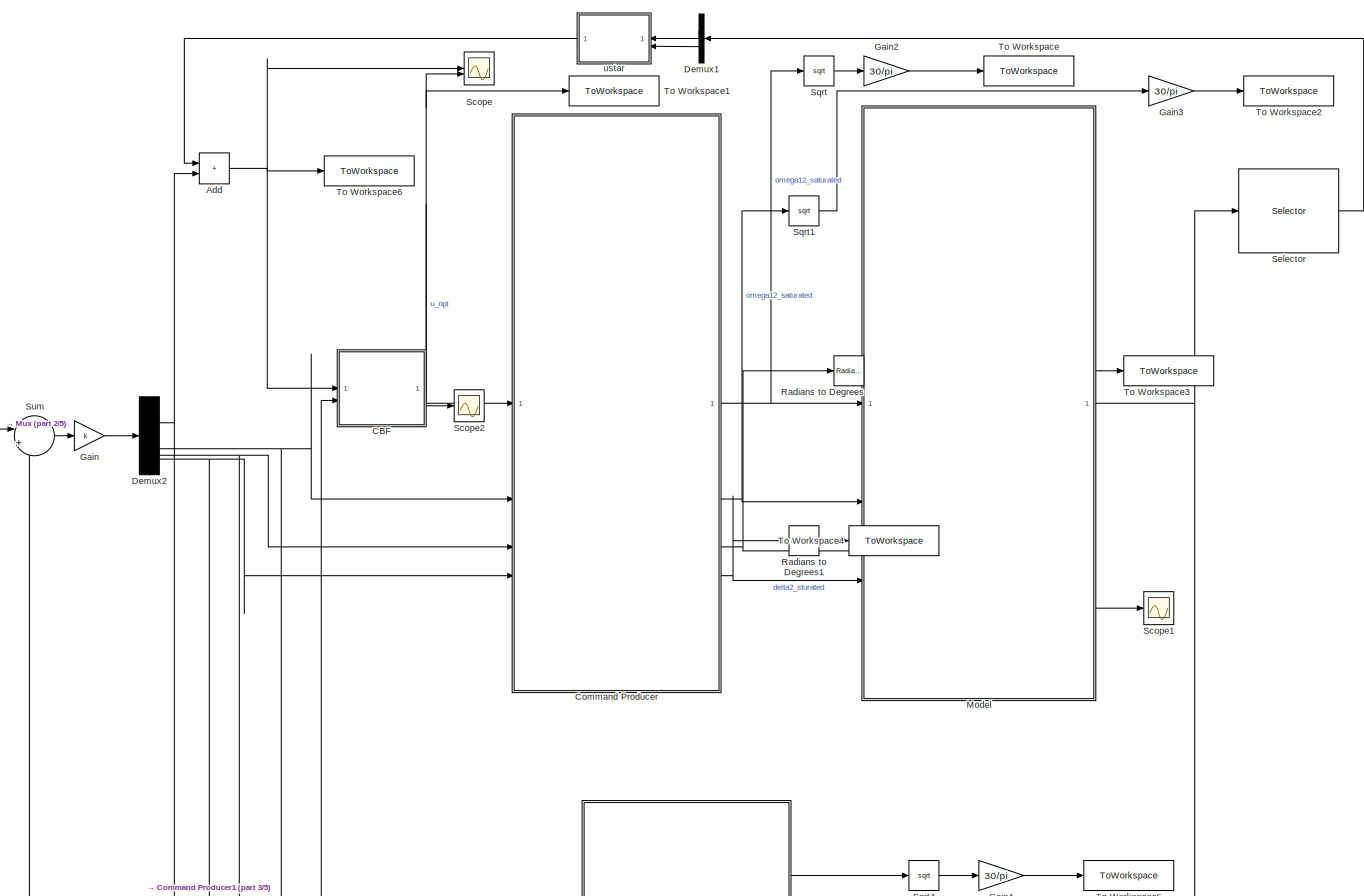
[diagram: root canvas - part 1/5, top center region]
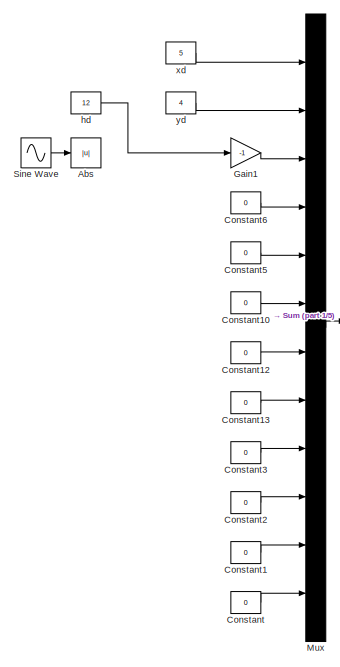
[diagram: root canvas - part 2/5, top left region]
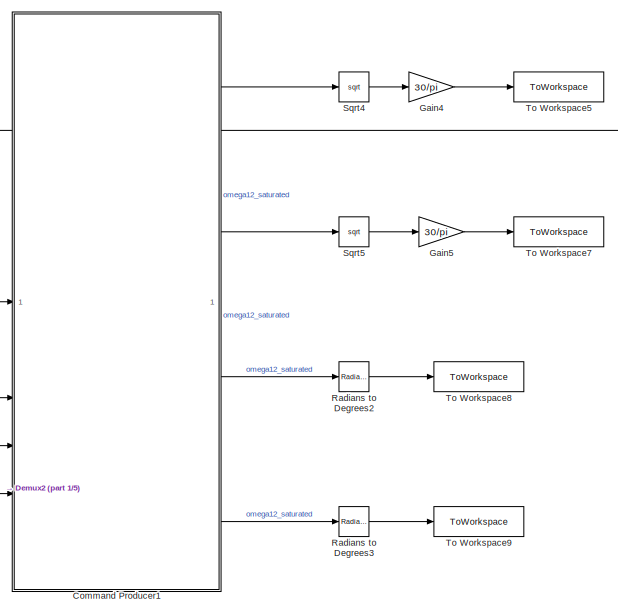
[diagram: root canvas - part 3/5, central region]
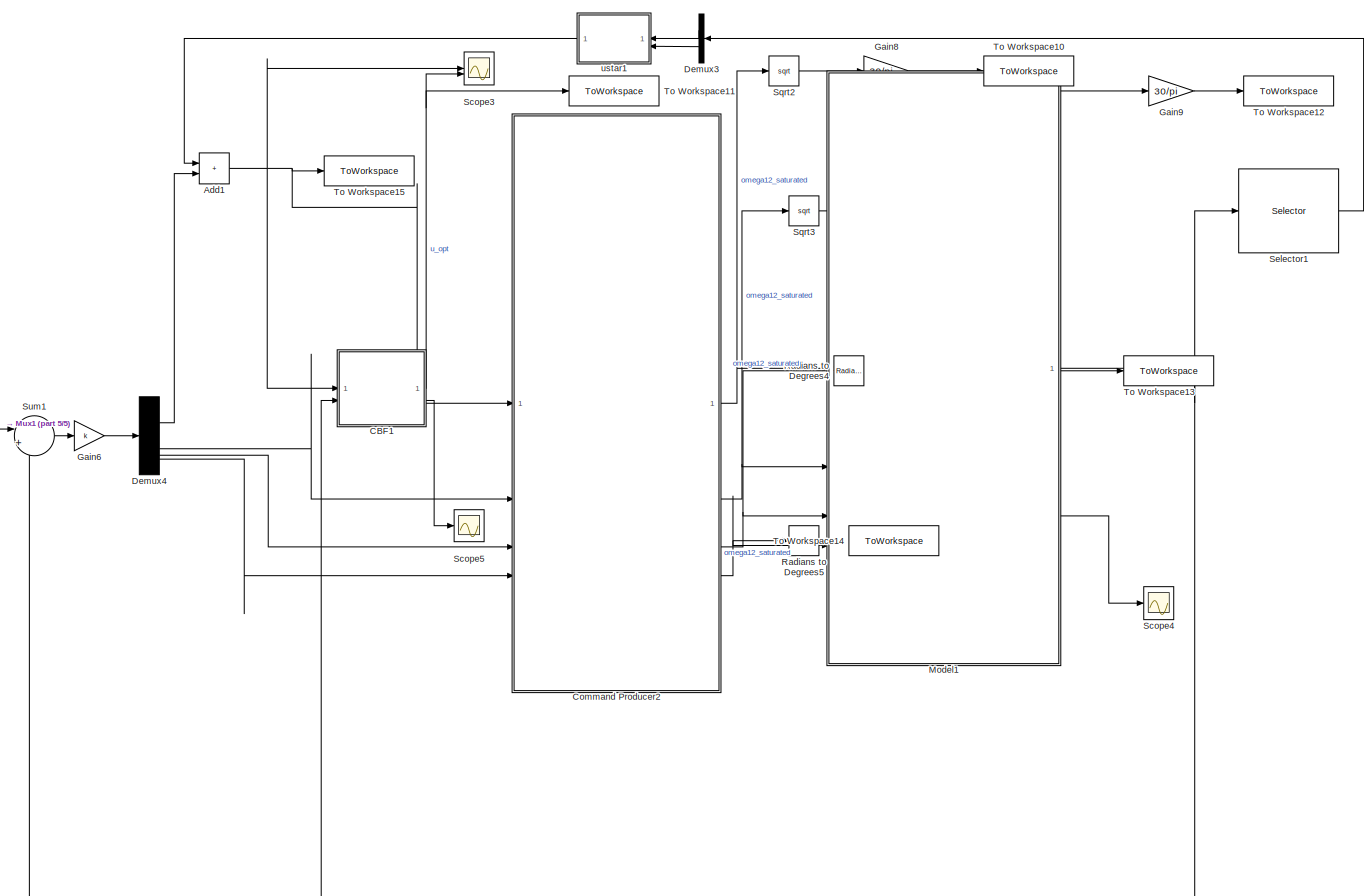
[diagram: root canvas - part 4/5, bottom right region]
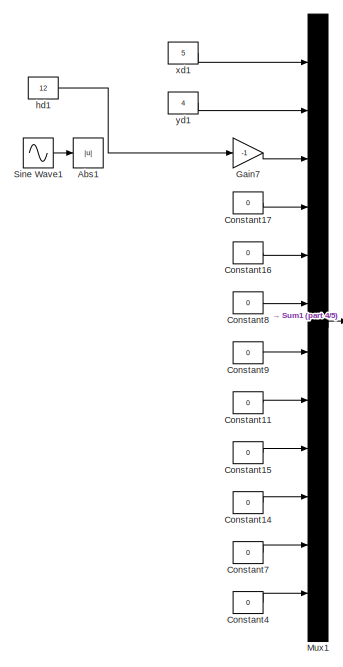
[diagram: root canvas - part 5/5, bottom left region]
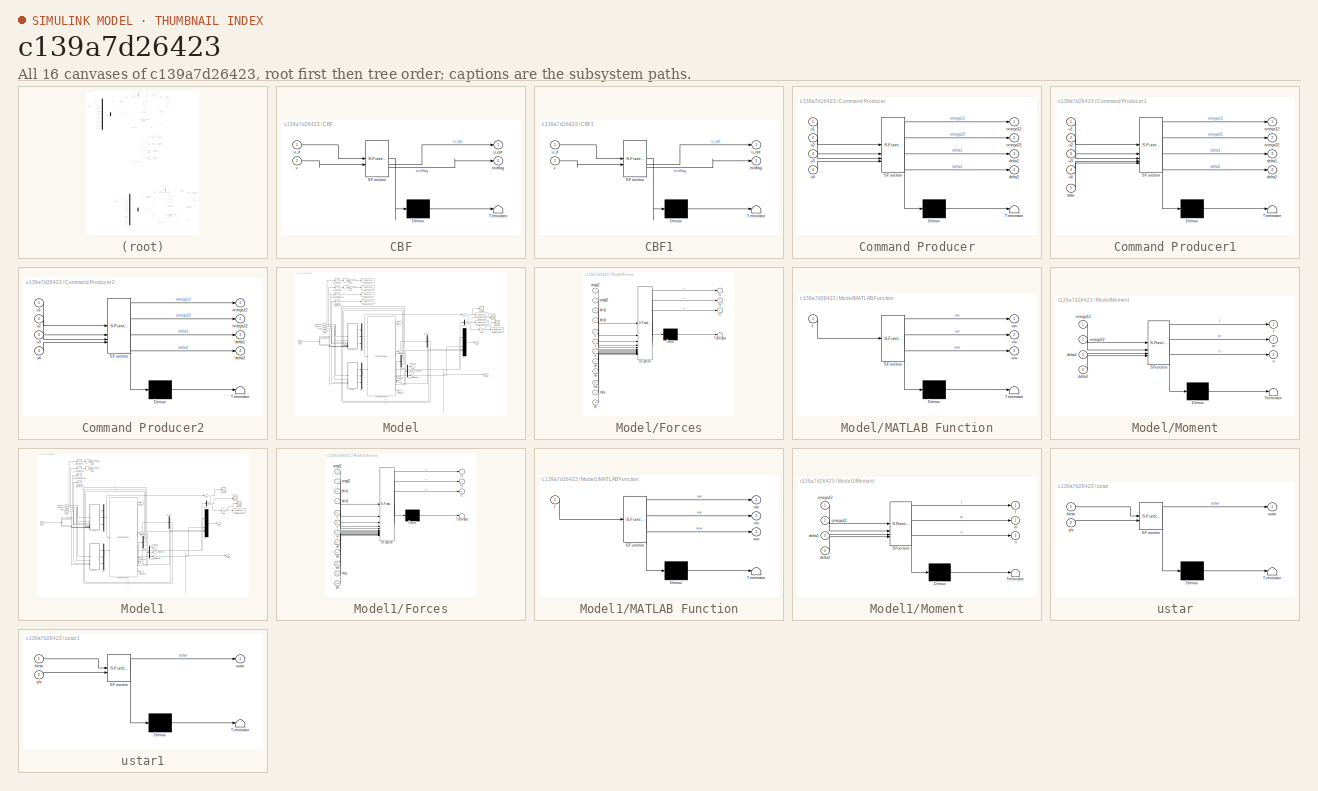
[diagram: thumbnail index - all 16 canvases of the model, root first then tree order]
MODEL slx_c139a7d26423
KIND model
CONFIG AbsTol = auto
CONFIG EnableMultiTasking = off
CONFIG FixedStep = 0.005
CONFIG MaxStep = auto
CONFIG MinStep = auto
CONFIG RelTol = 1e-3
CONFIG SampleTimeConstraint = Unconstrained
CONFIG SolverName = ode4
CONFIG StartTime = 0.0
CONFIG StopTime = 100
BLOCK [Abs] Abs
  Commented = on
  SaturateOnIntegerOverflow = off
BLOCK [Abs] Abs1
  Commented = on
  SaturateOnIntegerOverflow = off
BLOCK [Sum] Add
  IconShape = rectangular
BLOCK [Sum] Add1
  IconShape = rectangular
BLOCK [SubSystem] CBF
  ErrorFcn = Stateflow.Translate.translate
  LibrarySourceBlock = simulink/User-Defined\nFunctions/MATLAB Function
  PermitHierarchicalResolution = ExplicitOnly
  SFBlockType = MATLAB Function
  TreatAsAtomicUnit = on
BLOCK [Demux] CBF/ Demux 
  Outputs = 1
BLOCK [S-Function] CBF/ SFunction 
  EnableBusSupport = on
  FunctionName = sf_sfun
  PortCounts = [2 3]
  SFcnIsStateOwnerBlock = off
  SFunctionDeploymentMode = off
  Tag = Stateflow S-Function 7
BLOCK [Terminator] CBF/ Terminator 
BLOCK [Outport] CBF/exitflag
  Port = 2
BLOCK [Inport] CBF/u_d
BLOCK [Outport] CBF/u_opt
BLOCK [Inport] CBF/x
  Port = 2
BLOCK [SubSystem] CBF1
  ErrorFcn = Stateflow.Translate.translate
  LibrarySourceBlock = simulink/User-Defined\nFunctions/MATLAB Function
  PermitHierarchicalResolution = ExplicitOnly
  SFBlockType = MATLAB Function
  TreatAsAtomicUnit = on
BLOCK [Demux] CBF1/ Demux 
  Outputs = 1
BLOCK [S-Function] CBF1/ SFunction 
  EnableBusSupport = on
  FunctionName = sf_sfun
  PortCounts = [2 3]
  SFcnIsStateOwnerBlock = off
  SFunctionDeploymentMode = off
  Tag = Stateflow S-Function 8
BLOCK [Terminator] CBF1/ Terminator 
BLOCK [Outport] CBF1/exitflag
  Port = 2
BLOCK [Inport] CBF1/u_d
BLOCK [Outport] CBF1/u_opt
BLOCK [Inport] CBF1/x
  Port = 2
BLOCK [SubSystem] Command Producer
  ErrorFcn = Stateflow.Translate.translate
  LibrarySourceBlock = simulink/User-Defined\nFunctions/MATLAB Function
  PermitHierarchicalResolution = ExplicitOnly
  SFBlockType = MATLAB Function
  TreatAsAtomicUnit = on
BLOCK [Demux] Command Producer/ Demux 
  Outputs = 1
BLOCK [S-Function] Command Producer/ SFunction 
  EnableBusSupport = on
  FunctionName = sf_sfun
  PortCounts = [4 5]
  SFcnIsStateOwnerBlock = off
  SFunctionDeploymentMode = off
  Tag = Stateflow S-Function 3
BLOCK [Terminator] Command Producer/ Terminator 
BLOCK [Outport] Command Producer/delta1
  Port = 3
BLOCK [Outport] Command Producer/delta2
  Port = 4
BLOCK [Outport] Command Producer/omega12
BLOCK [Outport] Command Producer/omega22
  Port = 2
BLOCK [Inport] Command Producer/u1
BLOCK [Inport] Command Producer/u2
  Port = 2
BLOCK [Inport] Command Producer/u3
  Port = 3
BLOCK [Inport] Command Producer/u4
  Port = 4
BLOCK [SubSystem] Command Producer1
  ErrorFcn = Stateflow.Translate.translate
  LibrarySourceBlock = simulink/User-Defined\nFunctions/MATLAB Function
  PermitHierarchicalResolution = ExplicitOnly
  SFBlockType = MATLAB Function
  TreatAsAtomicUnit = on
BLOCK [Demux] Command Producer1/ Demux 
  Outputs = 1
BLOCK [S-Function] Command Producer1/ SFunction 
  EnableBusSupport = on
  FunctionName = sf_sfun
  PortCounts = [5 5]
  SFcnIsStateOwnerBlock = off
  SFunctionDeploymentMode = off
  Tag = Stateflow S-Function 6
BLOCK [Terminator] Command Producer1/ Terminator 
BLOCK [Inport] Command Producer1/data
  Port = 5
BLOCK [Outport] Command Producer1/delta1
  Port = 3
BLOCK [Outport] Command Producer1/delta2
  Port = 4
BLOCK [Outport] Command Producer1/omega12
BLOCK [Outport] Command Producer1/omega22
  Port = 2
BLOCK [Inport] Command Producer1/u1
BLOCK [Inport] Command Producer1/u2
  Port = 2
BLOCK [Inport] Command Producer1/u3
  Port = 3
BLOCK [Inport] Command Producer1/u4
  Port = 4
BLOCK [SubSystem] Command Producer2
  ErrorFcn = Stateflow.Translate.translate
  LibrarySourceBlock = simulink/User-Defined\nFunctions/MATLAB Function
  PermitHierarchicalResolution = ExplicitOnly
  SFBlockType = MATLAB Function
  TreatAsAtomicUnit = on
BLOCK [Demux] Command Producer2/ Demux 
  Outputs = 1
BLOCK [S-Function] Command Producer2/ SFunction 
  EnableBusSupport = on
  FunctionName = sf_sfun
  PortCounts = [4 5]
  SFcnIsStateOwnerBlock = off
  SFunctionDeploymentMode = off
  Tag = Stateflow S-Function 9
BLOCK [Terminator] Command Producer2/ Terminator 
BLOCK [Outport] Command Producer2/delta1
  Port = 3
BLOCK [Outport] Command Producer2/delta2
  Port = 4
BLOCK [Outport] Command Producer2/omega12
BLOCK [Outport] Command Producer2/omega22
  Port = 2
BLOCK [Inport] Command Producer2/u1
BLOCK [Inport] Command Producer2/u2
  Port = 2
BLOCK [Inport] Command Producer2/u3
  Port = 3
BLOCK [Inport] Command Producer2/u4
  Port = 4
BLOCK [Constant] Constant
  Value = 0
BLOCK [Constant] Constant1
  Value = 0
BLOCK [Constant] Constant10
  Value = 0
BLOCK [Constant] Constant11
  Value = 0
BLOCK [Constant] Constant12
  Value = 0
BLOCK [Constant] Constant13
  Value = 0
BLOCK [Constant] Constant14
  Value = 0
BLOCK [Constant] Constant15
  Value = 0
BLOCK [Constant] Constant16
  Value = 0
BLOCK [Constant] Constant17
  Value = 0
BLOCK [Constant] Constant2
  Value = 0
BLOCK [Constant] Constant3
  Value = 0
BLOCK [Constant] Constant4
  Value = 0
BLOCK [Constant] Constant5
  Value = 0
BLOCK [Constant] Constant6
  Value = 0
BLOCK [Constant] Constant7
  Value = 0
BLOCK [Constant] Constant8
  Value = 0
BLOCK [Constant] Constant9
  Value = 0
BLOCK [Demux] Demux1
  NameLocation = top
  Outputs = 2
BLOCK [Demux] Demux2
BLOCK [Demux] Demux3
  NameLocation = top
  Outputs = 2
BLOCK [Demux] Demux4
BLOCK [Gain] Gain
  Gain = k
  Multiplication = Matrix(K*u)
BLOCK [Gain] Gain1
  Gain = -1
BLOCK [Gain] Gain2
  Gain = 30/pi
BLOCK [Gain] Gain3
  Gain = 30/pi
BLOCK [Gain] Gain4
  Gain = 30/pi
BLOCK [Gain] Gain5
  Gain = 30/pi
BLOCK [Gain] Gain6
  Gain = k
  Multiplication = Matrix(K*u)
BLOCK [Gain] Gain7
  Gain = -1
BLOCK [Gain] Gain8
  Gain = 30/pi
BLOCK [Gain] Gain9
  Gain = 30/pi
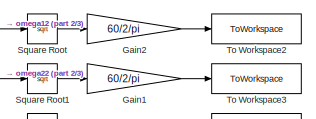
[diagram: Model - part 1/3, top left region]
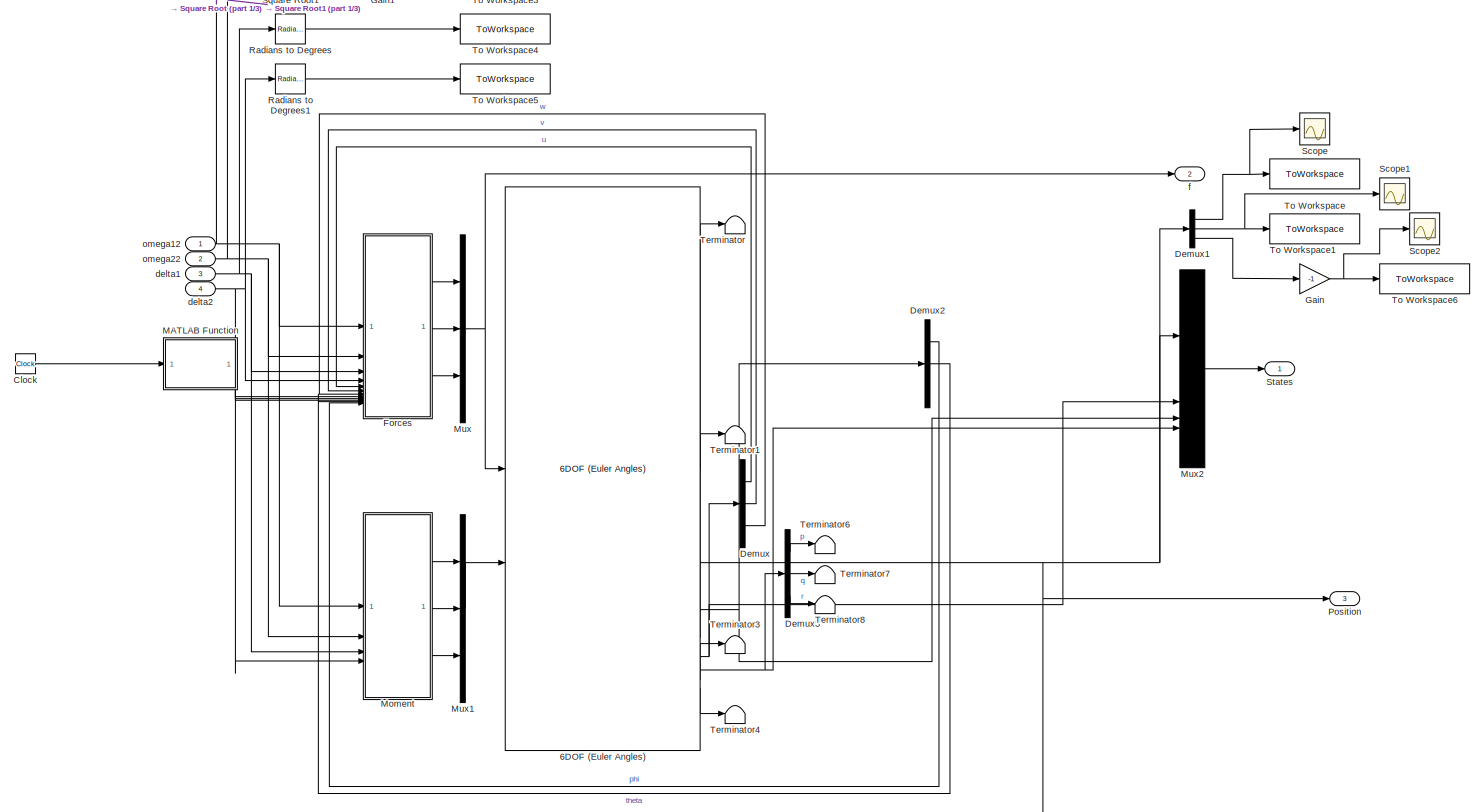
[diagram: Model - part 2/3, most of the canvas]
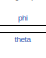
[diagram: Model - part 3/3, bottom center region]
BLOCK [SubSystem] Model
BLOCK [Reference] Model/6DOF (Euler Angles)  REF=shared6dof/6DOF (Euler Angles)
  LibrarySourceBlock = aerolib6dof2/6DOF (Euler Angles)
  SourceBlock = shared6dof/6DOF (Euler Angles)
  SourceType = 6DOF EoM (Body Axis)
BLOCK [Clock] Model/Clock
BLOCK [Demux] Model/Demux
  Outputs = 3
BLOCK [Demux] Model/Demux1
  Outputs = 3
BLOCK [Demux] Model/Demux2
  Outputs = 3
BLOCK [Demux] Model/Demux3
  Outputs = 3
BLOCK [SubSystem] Model/Forces
  ErrorFcn = Stateflow.Translate.translate
  LibrarySourceBlock = simulink/User-Defined\nFunctions/MATLAB Function
  PermitHierarchicalResolution = ExplicitOnly
  SFBlockType = MATLAB Function
  TreatAsAtomicUnit = on
BLOCK [Demux] Model/Forces/ Demux 
  Outputs = 1
BLOCK [S-Function] Model/Forces/ SFunction 
  EnableBusSupport = on
  FunctionName = sf_sfun
  PortCounts = [12 4]
  SFcnIsStateOwnerBlock = off
  SFunctionDeploymentMode = off
  Tag = Stateflow S-Function 2
BLOCK [Terminator] Model/Forces/ Terminator 
BLOCK [Inport] Model/Forces/delta1
  Port = 3
BLOCK [Inport] Model/Forces/delta2
  Port = 4
BLOCK [Outport] Model/Forces/fx
BLOCK [Outport] Model/Forces/fy
  Port = 2
BLOCK [Outport] Model/Forces/fz
  Port = 3
BLOCK [Inport] Model/Forces/omega12
BLOCK [Inport] Model/Forces/omega22
  Port = 2
BLOCK [Inport] Model/Forces/phi
  Port = 12
BLOCK [Inport] Model/Forces/theta
  Port = 11
BLOCK [Inport] Model/Forces/u
  Port = 5
BLOCK [Inport] Model/Forces/uw
  Port = 8
BLOCK [Inport] Model/Forces/v
  Port = 6
BLOCK [Inport] Model/Forces/vw
  Port = 9
BLOCK [Inport] Model/Forces/w
  Port = 7
BLOCK [Inport] Model/Forces/ww
  Port = 10
BLOCK [Gain] Model/Gain
  Gain = -1
BLOCK [Gain] Model/Gain1
  Gain = 60/2/pi
BLOCK [Gain] Model/Gain2
  Gain = 60/2/pi
BLOCK [SubSystem] Model/MATLAB Function
  ErrorFcn = Stateflow.Translate.translate
  LibrarySourceBlock = simulink/User-Defined\nFunctions/MATLAB Function
  PermitHierarchicalResolution = ExplicitOnly
  SFBlockType = MATLAB Function
  TreatAsAtomicUnit = on
BLOCK [Demux] Model/MATLAB Function/ Demux 
  Outputs = 1
BLOCK [S-Function] Model/MATLAB Function/ SFunction 
  EnableBusSupport = on
  FunctionName = sf_sfun
  PortCounts = [1 4]
  SFcnIsStateOwnerBlock = off
  SFunctionDeploymentMode = off
  Tag = Stateflow S-Function 4
BLOCK [Terminator] Model/MATLAB Function/ Terminator 
BLOCK [Inport] Model/MATLAB Function/t
BLOCK [Outport] Model/MATLAB Function/uw
BLOCK [Outport] Model/MATLAB Function/vw
  Port = 2
BLOCK [Outport] Model/MATLAB Function/ww
  Port = 3
BLOCK [SubSystem] Model/Moment
  ErrorFcn = Stateflow.Translate.translate
  LibrarySourceBlock = simulink/User-Defined\nFunctions/MATLAB Function
  PermitHierarchicalResolution = ExplicitOnly
  SFBlockType = MATLAB Function
  TreatAsAtomicUnit = on
BLOCK [Demux] Model/Moment/ Demux 
  Outputs = 1
BLOCK [S-Function] Model/Moment/ SFunction 
  EnableBusSupport = on
  FunctionName = sf_sfun
  PortCounts = [4 4]
  SFcnIsStateOwnerBlock = off
  SFunctionDeploymentMode = off
  Tag = Stateflow S-Function 1
BLOCK [Terminator] Model/Moment/ Terminator 
BLOCK [Inport] Model/Moment/delta1
  Port = 3
BLOCK [Inport] Model/Moment/delta2
  Port = 4
BLOCK [Outport] Model/Moment/l
BLOCK [Outport] Model/Moment/m
  Port = 2
BLOCK [Outport] Model/Moment/n
  Port = 3
BLOCK [Inport] Model/Moment/omega12
BLOCK [Inport] Model/Moment/omega22
  Port = 2
BLOCK [Mux] Model/Mux
  DisplayOption = bar
  Inputs = 3
BLOCK [Mux] Model/Mux1
  DisplayOption = bar
  Inputs = 3
BLOCK [Mux] Model/Mux2
  DisplayOption = bar
BLOCK [Outport] Model/Position
  Port = 3
BLOCK [Reference] Model/Radians to Degrees  REF=simulink_extras/Transformations/Radians
to Degrees
  SourceBlock = simulink_extras/Transformations/Radians\nto Degrees
  SourceType = RadiansToDegrees
BLOCK [Reference] Model/Radians to Degrees1  REF=simulink_extras/Transformations/Radians
to Degrees
  SourceBlock = simulink_extras/Transformations/Radians\nto Degrees
  SourceType = RadiansToDegrees
BLOCK [Scope] Model/Scope
  Floating = off
  NumInputPorts = 1
  ScopeSpecificationString = Simulink.scopes.TimeScopeBlockCfg('CurrentConfiguration', extmgr.ConfigurationSet(extmgr.Configuration('Core','General UI',true),extmgr.Configuration('Core','Source UI',true),extmgr.Configuration('Sources','WiredSimulink',true),extmgr.Configuration('Visuals','Time Domain',true,'SerializedDisplays',{struct('MinYLimReal','1.00000','MaxYLimReal','3.00000','YLabelReal','','MinYLimMag','1.00000','MaxYL...<+1415ch>
BLOCK [Scope] Model/Scope1
  Floating = off
  NumInputPorts = 1
  ScopeSpecificationString = Simulink.scopes.TimeScopeBlockCfg('CurrentConfiguration', extmgr.ConfigurationSet(extmgr.Configuration('Core','General UI',true),extmgr.Configuration('Core','Source UI',true),extmgr.Configuration('Sources','WiredSimulink',true,'DataLoggingVariableName','ScopeData1'),extmgr.Configuration('Visuals','Time Domain',true,'SerializedDisplays',{struct('MinYLimReal','-0.000000000000003','MaxYLimReal','0.00...<+1536ch>
BLOCK [Scope] Model/Scope2
  Floating = off
  NumInputPorts = 1
  ScopeSpecificationString = Simulink.scopes.TimeScopeBlockCfg('CurrentConfiguration', extmgr.ConfigurationSet(extmgr.Configuration('Core','General UI',true),extmgr.Configuration('Core','Source UI',true),extmgr.Configuration('Sources','WiredSimulink',true,'DataLoggingVariableName','ScopeData2'),extmgr.Configuration('Visuals','Time Domain',true,'SerializedDisplays',{struct('MinYLimReal','-0.56161','MaxYLimReal','5.05446','YLab...<+1496ch>
BLOCK [Sqrt] Model/Square Root
BLOCK [Sqrt] Model/Square Root1
BLOCK [Outport] Model/States
BLOCK [Terminator] Model/Terminator
BLOCK [Terminator] Model/Terminator1
BLOCK [Terminator] Model/Terminator3
BLOCK [Terminator] Model/Terminator4
BLOCK [Terminator] Model/Terminator6
BLOCK [Terminator] Model/Terminator7
BLOCK [Terminator] Model/Terminator8
BLOCK [ToWorkspace] Model/To Workspace
  FixptAsFi = on
  MaxDataPoints = inf
  SampleTime = -1
  Save2DSignal = 2-D array (concatenate along first dimension)
  VariableName = x_LQR
BLOCK [ToWorkspace] Model/To Workspace1
  FixptAsFi = on
  MaxDataPoints = inf
  SampleTime = -1
  Save2DSignal = 2-D array (concatenate along first dimension)
  VariableName = y_LQR
BLOCK [ToWorkspace] Model/To Workspace2
  FixptAsFi = on
  MaxDataPoints = inf
  SampleTime = -1
  Save2DSignal = 2-D array (concatenate along first dimension)
  VariableName = omega1
BLOCK [ToWorkspace] Model/To Workspace3
  FixptAsFi = on
  MaxDataPoints = inf
  SampleTime = -1
  Save2DSignal = 2-D array (concatenate along first dimension)
  VariableName = omega2
BLOCK [ToWorkspace] Model/To Workspace4
  FixptAsFi = on
  MaxDataPoints = inf
  SampleTime = -1
  Save2DSignal = 2-D array (concatenate along first dimension)
  VariableName = delta1
BLOCK [ToWorkspace] Model/To Workspace5
  FixptAsFi = on
  MaxDataPoints = inf
  SampleTime = -1
  Save2DSignal = 2-D array (concatenate along first dimension)
  VariableName = delta2
BLOCK [ToWorkspace] Model/To Workspace6
  FixptAsFi = on
  MaxDataPoints = inf
  SampleTime = -1
  Save2DSignal = 2-D array (concatenate along first dimension)
  VariableName = h_LQR
BLOCK [Inport] Model/delta1
  Port = 3
BLOCK [Inport] Model/delta2
  Port = 4
BLOCK [Outport] Model/f
  Port = 2
BLOCK [Inport] Model/omega12
BLOCK [Inport] Model/omega22
  Port = 2
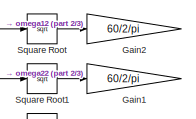
[diagram: Model1 - part 1/3, top left region]
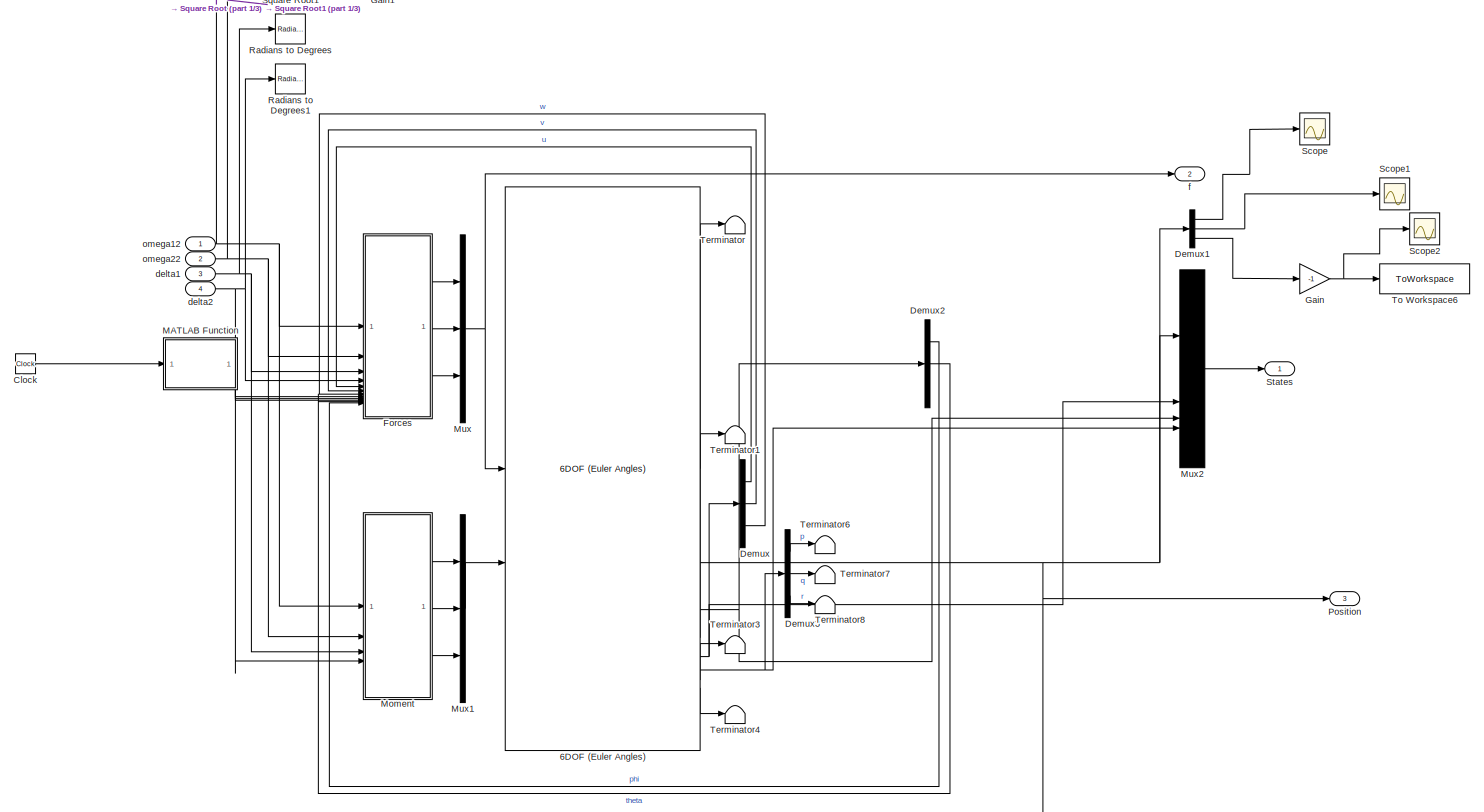
[diagram: Model1 - part 2/3, most of the canvas]
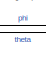
[diagram: Model1 - part 3/3, bottom center region]
BLOCK [SubSystem] Model1
BLOCK [Reference] Model1/6DOF (Euler Angles)  REF=shared6dof/6DOF (Euler Angles)
  LibrarySourceBlock = aerolib6dof2/6DOF (Euler Angles)
  SourceBlock = shared6dof/6DOF (Euler Angles)
  SourceType = 6DOF EoM (Body Axis)
BLOCK [Clock] Model1/Clock
BLOCK [Demux] Model1/Demux
  Outputs = 3
BLOCK [Demux] Model1/Demux1
  Outputs = 3
BLOCK [Demux] Model1/Demux2
  Outputs = 3
BLOCK [Demux] Model1/Demux3
  Outputs = 3
BLOCK [SubSystem] Model1/Forces
  ErrorFcn = Stateflow.Translate.translate
  LibrarySourceBlock = simulink/User-Defined\nFunctions/MATLAB Function
  PermitHierarchicalResolution = ExplicitOnly
  SFBlockType = MATLAB Function
  TreatAsAtomicUnit = on
BLOCK [Demux] Model1/Forces/ Demux 
  Outputs = 1
BLOCK [S-Function] Model1/Forces/ SFunction 
  EnableBusSupport = on
  FunctionName = sf_sfun
  PortCounts = [12 4]
  SFcnIsStateOwnerBlock = off
  SFunctionDeploymentMode = off
  Tag = Stateflow S-Function 10
BLOCK [Terminator] Model1/Forces/ Terminator 
BLOCK [Inport] Model1/Forces/delta1
  Port = 3
BLOCK [Inport] Model1/Forces/delta2
  Port = 4
BLOCK [Outport] Model1/Forces/fx
BLOCK [Outport] Model1/Forces/fy
  Port = 2
BLOCK [Outport] Model1/Forces/fz
  Port = 3
BLOCK [Inport] Model1/Forces/omega12
BLOCK [Inport] Model1/Forces/omega22
  Port = 2
BLOCK [Inport] Model1/Forces/phi
  Port = 12
BLOCK [Inport] Model1/Forces/theta
  Port = 11
BLOCK [Inport] Model1/Forces/u
  Port = 5
BLOCK [Inport] Model1/Forces/uw
  Port = 8
BLOCK [Inport] Model1/Forces/v
  Port = 6
BLOCK [Inport] Model1/Forces/vw
  Port = 9
BLOCK [Inport] Model1/Forces/w
  Port = 7
BLOCK [Inport] Model1/Forces/ww
  Port = 10
BLOCK [Gain] Model1/Gain
  Gain = -1
BLOCK [Gain] Model1/Gain1
  Gain = 60/2/pi
BLOCK [Gain] Model1/Gain2
  Gain = 60/2/pi
BLOCK [SubSystem] Model1/MATLAB Function
  ErrorFcn = Stateflow.Translate.translate
  LibrarySourceBlock = simulink/User-Defined\nFunctions/MATLAB Function
  PermitHierarchicalResolution = ExplicitOnly
  SFBlockType = MATLAB Function
  TreatAsAtomicUnit = on
BLOCK [Demux] Model1/MATLAB Function/ Demux 
  Outputs = 1
BLOCK [S-Function] Model1/MATLAB Function/ SFunction 
  EnableBusSupport = on
  FunctionName = sf_sfun
  PortCounts = [1 4]
  SFcnIsStateOwnerBlock = off
  SFunctionDeploymentMode = off
  Tag = Stateflow S-Function 11
BLOCK [Terminator] Model1/MATLAB Function/ Terminator 
BLOCK [Inport] Model1/MATLAB Function/t
BLOCK [Outport] Model1/MATLAB Function/uw
BLOCK [Outport] Model1/MATLAB Function/vw
  Port = 2
BLOCK [Outport] Model1/MATLAB Function/ww
  Port = 3
BLOCK [SubSystem] Model1/Moment
  ErrorFcn = Stateflow.Translate.translate
  LibrarySourceBlock = simulink/User-Defined\nFunctions/MATLAB Function
  PermitHierarchicalResolution = ExplicitOnly
  SFBlockType = MATLAB Function
  TreatAsAtomicUnit = on
BLOCK [Demux] Model1/Moment/ Demux 
  Outputs = 1
BLOCK [S-Function] Model1/Moment/ SFunction 
  EnableBusSupport = on
  FunctionName = sf_sfun
  PortCounts = [4 4]
  SFcnIsStateOwnerBlock = off
  SFunctionDeploymentMode = off
  Tag = Stateflow S-Function 12
BLOCK [Terminator] Model1/Moment/ Terminator 
BLOCK [Inport] Model1/Moment/delta1
  Port = 3
BLOCK [Inport] Model1/Moment/delta2
  Port = 4
BLOCK [Outport] Model1/Moment/l
BLOCK [Outport] Model1/Moment/m
  Port = 2
BLOCK [Outport] Model1/Moment/n
  Port = 3
BLOCK [Inport] Model1/Moment/omega12
BLOCK [Inport] Model1/Moment/omega22
  Port = 2
BLOCK [Mux] Model1/Mux
  DisplayOption = bar
  Inputs = 3
BLOCK [Mux] Model1/Mux1
  DisplayOption = bar
  Inputs = 3
BLOCK [Mux] Model1/Mux2
  DisplayOption = bar
BLOCK [Outport] Model1/Position
  Port = 3
BLOCK [Reference] Model1/Radians to Degrees  REF=simulink_extras/Transformations/Radians
to Degrees
  SourceBlock = simulink_extras/Transformations/Radians\nto Degrees
  SourceType = RadiansToDegrees
BLOCK [Reference] Model1/Radians to Degrees1  REF=simulink_extras/Transformations/Radians
to Degrees
  SourceBlock = simulink_extras/Transformations/Radians\nto Degrees
  SourceType = RadiansToDegrees
BLOCK [Scope] Model1/Scope
  Floating = off
  NumInputPorts = 1
  ScopeSpecificationString = Simulink.scopes.TimeScopeBlockCfg('CurrentConfiguration', extmgr.ConfigurationSet(extmgr.Configuration('Core','General UI',true),extmgr.Configuration('Core','Source UI',true),extmgr.Configuration('Sources','WiredSimulink',true),extmgr.Configuration('Visuals','Time Domain',true,'SerializedDisplays',{struct('MinYLimReal','1.00000','MaxYLimReal','3.00000','YLabelReal','','MinYLimMag','1.00000','MaxYL...<+1415ch>
BLOCK [Scope] Model1/Scope1
  Floating = off
  NumInputPorts = 1
  ScopeSpecificationString = Simulink.scopes.TimeScopeBlockCfg('CurrentConfiguration', extmgr.ConfigurationSet(extmgr.Configuration('Core','General UI',true),extmgr.Configuration('Core','Source UI',true),extmgr.Configuration('Sources','WiredSimulink',true,'DataLoggingVariableName','ScopeData1'),extmgr.Configuration('Visuals','Time Domain',true,'SerializedDisplays',{struct('MinYLimReal','-0.000000000000003','MaxYLimReal','0.00...<+1536ch>
BLOCK [Scope] Model1/Scope2
  Floating = off
  NumInputPorts = 1
  ScopeSpecificationString = Simulink.scopes.TimeScopeBlockCfg('CurrentConfiguration', extmgr.ConfigurationSet(extmgr.Configuration('Core','General UI',true),extmgr.Configuration('Core','Source UI',true),extmgr.Configuration('Sources','WiredSimulink',true,'DataLoggingVariableName','ScopeData2'),extmgr.Configuration('Visuals','Time Domain',true,'SerializedDisplays',{struct('MinYLimReal','-0.56161','MaxYLimReal','5.05446','YLab...<+1496ch>
BLOCK [Sqrt] Model1/Square Root
BLOCK [Sqrt] Model1/Square Root1
BLOCK [Outport] Model1/States
BLOCK [Terminator] Model1/Terminator
BLOCK [Terminator] Model1/Terminator1
BLOCK [Terminator] Model1/Terminator3
BLOCK [Terminator] Model1/Terminator4
BLOCK [Terminator] Model1/Terminator6
BLOCK [Terminator] Model1/Terminator7
BLOCK [Terminator] Model1/Terminator8
BLOCK [ToWorkspace] Model1/To Workspace6
  FixptAsFi = on
  MaxDataPoints = inf
  SampleTime = -1
  Save2DSignal = 2-D array (concatenate along first dimension)
  VariableName = h_LQR1
BLOCK [Inport] Model1/delta1
  Port = 3
BLOCK [Inport] Model1/delta2
  Port = 4
BLOCK [Outport] Model1/f
  Port = 2
BLOCK [Inport] Model1/omega12
BLOCK [Inport] Model1/omega22
  Port = 2
BLOCK [Mux] Mux
  DisplayOption = bar
  Inputs = 12
BLOCK [Mux] Mux1
  DisplayOption = bar
  Inputs = 12
BLOCK [Reference] Radians to Degrees  REF=simulink_extras/Transformations/Radians
to Degrees
  SourceBlock = simulink_extras/Transformations/Radians\nto Degrees
  SourceType = RadiansToDegrees
BLOCK [Reference] Radians to Degrees1  REF=simulink_extras/Transformations/Radians
to Degrees
  SourceBlock = simulink_extras/Transformations/Radians\nto Degrees
  SourceType = RadiansToDegrees
BLOCK [Reference] Radians to Degrees2  REF=simulink_extras/Transformations/Radians
to Degrees
  SourceBlock = simulink_extras/Transformations/Radians\nto Degrees
  SourceType = RadiansToDegrees
BLOCK [Reference] Radians to Degrees3  REF=simulink_extras/Transformations/Radians
to Degrees
  SourceBlock = simulink_extras/Transformations/Radians\nto Degrees
  SourceType = RadiansToDegrees
BLOCK [Reference] Radians to Degrees4  REF=simulink_extras/Transformations/Radians
to Degrees
  SourceBlock = simulink_extras/Transformations/Radians\nto Degrees
  SourceType = RadiansToDegrees
BLOCK [Reference] Radians to Degrees5  REF=simulink_extras/Transformations/Radians
to Degrees
  SourceBlock = simulink_extras/Transformations/Radians\nto Degrees
  SourceType = RadiansToDegrees
BLOCK [Scope] Scope
  Floating = off
  NumInputPorts = 2
  ScopeSpecificationString = Simulink.scopes.TimeScopeBlockCfg('CurrentConfiguration', extmgr.ConfigurationSet(extmgr.Configuration('Core','General UI',true),extmgr.Configuration('Core','Source UI',true),extmgr.Configuration('Sources','WiredSimulink',true,'DataLoggingVariableName','ScopeData1'),extmgr.Configuration('Visuals','Time Domain',true,'SerializedDisplays',{struct('MinYLimReal','623656.94222','MaxYLimReal','2175676.86...<+1735ch>
BLOCK [Scope] Scope1
  Floating = off
  NumInputPorts = 2
  ScopeSpecificationString = Simulink.scopes.TimeScopeBlockCfg('CurrentConfiguration', extmgr.ConfigurationSet(extmgr.Configuration('Core','General UI',true),extmgr.Configuration('Core','Source UI',true),extmgr.Configuration('Sources','WiredSimulink',true,'DataLoggingVariableName','ScopeData1'),extmgr.Configuration('Visuals','Time Domain',true,'SerializedDisplays',{struct('MinYLimReal','-10.76112','MaxYLimReal','6.82827','YLa...<+1660ch>
BLOCK [Scope] Scope2
  Floating = off
  NumInputPorts = 1
  ScopeSpecificationString = Simulink.scopes.TimeScopeBlockCfg('CurrentConfiguration', extmgr.ConfigurationSet(extmgr.Configuration('Core','General UI',true),extmgr.Configuration('Core','Source UI',true),extmgr.Configuration('Sources','WiredSimulink',true,'DataLoggingVariableName','ScopeData1'),extmgr.Configuration('Visuals','Time Domain',true,'SerializedDisplays',{struct('MinYLimReal','0.875','MaxYLimReal','2.125','YLabelRea...<+1470ch>
BLOCK [Scope] Scope3
  Floating = off
  NumInputPorts = 2
  ScopeSpecificationString = Simulink.scopes.TimeScopeBlockCfg('CurrentConfiguration', extmgr.ConfigurationSet(extmgr.Configuration('Core','General UI',true),extmgr.Configuration('Core','Source UI',true),extmgr.Configuration('Sources','WiredSimulink',true,'DataLoggingVariableName','ScopeData1'),extmgr.Configuration('Visuals','Time Domain',true,'SerializedDisplays',{struct('MinYLimReal','623656.94222','MaxYLimReal','2175676.86...<+1735ch>
BLOCK [Scope] Scope4
  Floating = off
  NumInputPorts = 2
  ScopeSpecificationString = Simulink.scopes.TimeScopeBlockCfg('CurrentConfiguration', extmgr.ConfigurationSet(extmgr.Configuration('Core','General UI',true),extmgr.Configuration('Core','Source UI',true),extmgr.Configuration('Sources','WiredSimulink',true,'DataLoggingVariableName','ScopeData2'),extmgr.Configuration('Visuals','Time Domain',true,'SerializedDisplays',{struct('MinYLimReal','-9.67086','MaxYLimReal','6.6347','YLabe...<+1658ch>
BLOCK [Scope] Scope5
  Floating = off
  NumInputPorts = 1
  ScopeSpecificationString = Simulink.scopes.TimeScopeBlockCfg('CurrentConfiguration', extmgr.ConfigurationSet(extmgr.Configuration('Core','General UI',true),extmgr.Configuration('Core','Source UI',true),extmgr.Configuration('Sources','WiredSimulink',true,'DataLoggingVariableName','ScopeData3'),extmgr.Configuration('Visuals','Time Domain',true,'SerializedDisplays',{struct('MinYLimReal','0.875','MaxYLimReal','2.125','YLabelRea...<+1442ch>
BLOCK [Selector] Selector
  IndexOptions = Index vector (dialog)
  Indices = [7 8]
  InputPortWidth = 12
  OutputSizes = 1
BLOCK [Selector] Selector1
  IndexOptions = Index vector (dialog)
  Indices = [7 8]
  InputPortWidth = 12
  OutputSizes = 1
BLOCK [Sin] Sine Wave
  Amplitude = 8
  Commented = on
  Frequency = 0.1
  SampleTime = 0
BLOCK [Sin] Sine Wave1
  Amplitude = 8
  Commented = on
  Frequency = 0.1
  SampleTime = 0
BLOCK [Sqrt] Sqrt
BLOCK [Sqrt] Sqrt1
BLOCK [Sqrt] Sqrt2
BLOCK [Sqrt] Sqrt3
BLOCK [Sqrt] Sqrt4
BLOCK [Sqrt] Sqrt5
BLOCK [Sum] Sum
  Inputs = |+-
BLOCK [Sum] Sum1
  Inputs = |+-
BLOCK [ToWorkspace] To Workspace
  FixptAsFi = on
  MaxDataPoints = inf
  SampleTime = -1
  SaveFormat = Timeseries
  VariableName = omega1_lqr
BLOCK [ToWorkspace] To Workspace1
  FixptAsFi = on
  MaxDataPoints = inf
  SampleTime = -1
  Save2DSignal = 2-D array (concatenate along first dimension)
  VariableName = uz_cbf
BLOCK [ToWorkspace] To Workspace10
  FixptAsFi = on
  MaxDataPoints = inf
  SampleTime = -1
  SaveFormat = Timeseries
  VariableName = omega1_lqr1
BLOCK [ToWorkspace] To Workspace11
  FixptAsFi = on
  MaxDataPoints = inf
  SampleTime = -1
  Save2DSignal = 2-D array (concatenate along first dimension)
  VariableName = uz_cbf1
BLOCK [ToWorkspace] To Workspace12
  FixptAsFi = on
  MaxDataPoints = inf
  SampleTime = -1
  SaveFormat = Timeseries
  VariableName = omega2_lqr1
BLOCK [ToWorkspace] To Workspace13
  FixptAsFi = on
  MaxDataPoints = inf
  SampleTime = -1
  SaveFormat = Timeseries
  VariableName = delta1_lqr1
BLOCK [ToWorkspace] To Workspace14
  FixptAsFi = on
  MaxDataPoints = inf
  SampleTime = -1
  SaveFormat = Timeseries
  VariableName = delta2_lqr1
BLOCK [ToWorkspace] To Workspace15
  FixptAsFi = on
  MaxDataPoints = inf
  SampleTime = -1
  Save2DSignal = 2-D array (concatenate along first dimension)
  VariableName = uz_lqr1
BLOCK [ToWorkspace] To Workspace2
  FixptAsFi = on
  MaxDataPoints = inf
  SampleTime = -1
  SaveFormat = Timeseries
  VariableName = omega2_lqr
BLOCK [ToWorkspace] To Workspace3
  FixptAsFi = on
  MaxDataPoints = inf
  SampleTime = -1
  SaveFormat = Timeseries
  VariableName = delta1_lqr
BLOCK [ToWorkspace] To Workspace4
  FixptAsFi = on
  MaxDataPoints = inf
  SampleTime = -1
  SaveFormat = Timeseries
  VariableName = delta2_lqr
BLOCK [ToWorkspace] To Workspace5
  FixptAsFi = on
  MaxDataPoints = inf
  SampleTime = -1
  SaveFormat = Timeseries
  VariableName = omega1_cbf
BLOCK [ToWorkspace] To Workspace6
  FixptAsFi = on
  MaxDataPoints = inf
  SampleTime = -1
  Save2DSignal = 2-D array (concatenate along first dimension)
  VariableName = uz_lqr
BLOCK [ToWorkspace] To Workspace7
  FixptAsFi = on
  MaxDataPoints = inf
  SampleTime = -1
  SaveFormat = Timeseries
  VariableName = omega2_cbf
BLOCK [ToWorkspace] To Workspace8
  FixptAsFi = on
  MaxDataPoints = inf
  SampleTime = -1
  SaveFormat = Timeseries
  VariableName = delta1_cbf
BLOCK [ToWorkspace] To Workspace9
  FixptAsFi = on
  MaxDataPoints = inf
  SampleTime = -1
  SaveFormat = Timeseries
  VariableName = delta2_cbf
BLOCK [Constant] hd
  Value = 12
BLOCK [Constant] hd1
  Value = 12
BLOCK [SubSystem] ustar
  ErrorFcn = Stateflow.Translate.translate
  LibrarySourceBlock = simulink/User-Defined\nFunctions/MATLAB Function
  NameLocation = top
  PermitHierarchicalResolution = ExplicitOnly
  SFBlockType = MATLAB Function
  TreatAsAtomicUnit = on
BLOCK [Demux] ustar/ Demux 
  Outputs = 1
BLOCK [S-Function] ustar/ SFunction 
  EnableBusSupport = on
  FunctionName = sf_sfun
  PortCounts = [2 2]
  SFcnIsStateOwnerBlock = off
  SFunctionDeploymentMode = off
  Tag = Stateflow S-Function 5
BLOCK [Terminator] ustar/ Terminator 
BLOCK [Inport] ustar/phi
  Port = 2
BLOCK [Inport] ustar/theta
BLOCK [Outport] ustar/ustar
BLOCK [SubSystem] ustar1
  ErrorFcn = Stateflow.Translate.translate
  LibrarySourceBlock = simulink/User-Defined\nFunctions/MATLAB Function
  NameLocation = top
  PermitHierarchicalResolution = ExplicitOnly
  SFBlockType = MATLAB Function
  TreatAsAtomicUnit = on
BLOCK [Demux] ustar1/ Demux 
  Outputs = 1
BLOCK [S-Function] ustar1/ SFunction 
  EnableBusSupport = on
  FunctionName = sf_sfun
  PortCounts = [2 2]
  SFcnIsStateOwnerBlock = off
  SFunctionDeploymentMode = off
  Tag = Stateflow S-Function 13
BLOCK [Terminator] ustar1/ Terminator 
BLOCK [Inport] ustar1/phi
  Port = 2
BLOCK [Inport] ustar1/theta
BLOCK [Outport] ustar1/ustar
BLOCK [Constant] xd
  Value = 5
BLOCK [Constant] xd1
  Value = 5
BLOCK [Constant] yd
  Value = 4
BLOCK [Constant] yd1
  Value = 4
NET Add1:1 -> CBF1:1, Command Producer2:1, Scope3:1, To Workspace15:1
NET Add:1 -> CBF:1, Scope:1, To Workspace6:1
NET CBF1:1 -> Scope3:2, To Workspace11:1
LINE CBF1:2 -> Scope5:1
NET CBF:1 -> Command Producer:1, Scope:2, To Workspace1:1
LINE CBF:2 -> Scope2:1
LINE Command Producer1:1 -> Sqrt4:1
LINE Command Producer1:2 -> Sqrt5:1
LINE Command Producer1:3 -> Radians to Degrees2:1
LINE Command Producer1:4 -> Radians to Degrees3:1
NET Command Producer2:1 -> Model1:1, Sqrt2:1
NET Command Producer2:2 -> Model1:2, Sqrt3:1
NET Command Producer2:3 -> Model1:3, Radians to Degrees4:1
NET Command Producer2:4 -> Model1:4, Radians to Degrees5:1
NET Command Producer:1 -> Model:1, Sqrt:1
NET Command Producer:2 -> Model:2, Sqrt1:1
NET Command Producer:3 -> Model:3, Radians to Degrees:1
NET Command Producer:4 -> Model:4, Radians to Degrees1:1
LINE Constant10:1 -> Mux:6
LINE Constant11:1 -> Mux1:8
LINE Constant12:1 -> Mux:7
LINE Constant13:1 -> Mux:8
LINE Constant14:1 -> Mux1:10
LINE Constant15:1 -> Mux1:9
LINE Constant16:1 -> Mux1:5
LINE Constant17:1 -> Mux1:4
LINE Constant1:1 -> Mux:11
LINE Constant2:1 -> Mux:10
LINE Constant3:1 -> Mux:9
LINE Constant4:1 -> Mux1:12
LINE Constant5:1 -> Mux:5
LINE Constant6:1 -> Mux:4
LINE Constant7:1 -> Mux1:11
LINE Constant8:1 -> Mux1:6
LINE Constant9:1 -> Mux1:7
LINE Constant:1 -> Mux:12
LINE Demux1:1 -> ustar:1
LINE Demux1:2 -> ustar:2
NET Demux2:1 -> Add:2, Command Producer1:1
NET Demux2:2 -> Command Producer1:2, Command Producer:2
NET Demux2:3 -> Command Producer1:3, Command Producer:3
NET Demux2:4 -> Command Producer1:5, Command Producer:4
LINE Demux3:1 -> ustar1:1
LINE Demux3:2 -> ustar1:2
LINE Demux4:1 -> Add1:2
LINE Demux4:2 -> Command Producer2:2
LINE Demux4:3 -> Command Producer2:3
LINE Demux4:4 -> Command Producer2:4
LINE Gain1:1 -> Mux:3
LINE Gain2:1 -> To Workspace:1
LINE Gain3:1 -> To Workspace2:1
LINE Gain4:1 -> To Workspace5:1
LINE Gain5:1 -> To Workspace7:1
LINE Gain6:1 -> Demux4:1
LINE Gain7:1 -> Mux1:3
LINE Gain8:1 -> To Workspace10:1
LINE Gain9:1 -> To Workspace12:1
LINE Gain:1 -> Demux2:1
LINE Model/6DOF (Euler Angles):1 -> Model/Terminator:1
NET Model/6DOF (Euler Angles):2 -> Model/Demux1:1, Model/Mux2:1, Model/Position:1
NET Model/6DOF (Euler Angles):3 -> Model/Demux2:1, Model/Mux2:3
LINE Model/6DOF (Euler Angles):4 -> Model/Terminator1:1
NET Model/6DOF (Euler Angles):5 -> Model/Demux:1, Model/Mux2:2
NET Model/6DOF (Euler Angles):6 -> Model/Demux3:1, Model/Mux2:4
LINE Model/6DOF (Euler Angles):7 -> Model/Terminator3:1
LINE Model/6DOF (Euler Angles):8 -> Model/Terminator4:1
LINE Model/Clock:1 -> Model/MATLAB Function:1
NET Model/Demux1:1 -> Model/Scope:1, Model/To Workspace:1
NET Model/Demux1:2 -> Model/Scope1:1, Model/To Workspace1:1
LINE Model/Demux1:3 -> Model/Gain:1
LINE Model/Demux2:1 -> Model/Forces:12
LINE Model/Demux2:2 -> Model/Forces:11
LINE Model/Demux3:1 -> Model/Terminator6:1
LINE Model/Demux3:2 -> Model/Terminator7:1
LINE Model/Demux3:3 -> Model/Terminator8:1
LINE Model/Demux:1 -> Model/Forces:5
LINE Model/Demux:2 -> Model/Forces:6
LINE Model/Demux:3 -> Model/Forces:7
LINE Model/Forces:1 -> Model/Mux:1
LINE Model/Forces:2 -> Model/Mux:2
LINE Model/Forces:3 -> Model/Mux:3
LINE Model/Gain1:1 -> Model/To Workspace3:1
LINE Model/Gain2:1 -> Model/To Workspace2:1
NET Model/Gain:1 -> Model/Scope2:1, Model/To Workspace6:1
LINE Model/MATLAB Function:1 -> Model/Forces:8
LINE Model/MATLAB Function:2 -> Model/Forces:9
LINE Model/MATLAB Function:3 -> Model/Forces:10
LINE Model/Moment:1 -> Model/Mux1:1
LINE Model/Moment:2 -> Model/Mux1:2
LINE Model/Moment:3 -> Model/Mux1:3
LINE Model/Mux1:1 -> Model/6DOF (Euler Angles):2
LINE Model/Mux2:1 -> Model/States:1
NET Model/Mux:1 -> Model/6DOF (Euler Angles):1, Model/f:1
LINE Model/Radians to Degrees1:1 -> Model/To Workspace5:1
LINE Model/Radians to Degrees:1 -> Model/To Workspace4:1
LINE Model/Square Root1:1 -> Model/Gain1:1
LINE Model/Square Root:1 -> Model/Gain2:1
NET Model/delta1:1 -> Model/Forces:3, Model/Moment:3, Model/Radians to Degrees:1
NET Model/delta2:1 -> Model/Forces:4, Model/Moment:4, Model/Radians to Degrees1:1
NET Model/omega12:1 -> Model/Forces:1, Model/Moment:1, Model/Square Root:1
NET Model/omega22:1 -> Model/Forces:2, Model/Moment:2, Model/Square Root1:1
LINE Model1/6DOF (Euler Angles):1 -> Model1/Terminator:1
NET Model1/6DOF (Euler Angles):2 -> Model1/Demux1:1, Model1/Mux2:1, Model1/Position:1
NET Model1/6DOF (Euler Angles):3 -> Model1/Demux2:1, Model1/Mux2:3
LINE Model1/6DOF (Euler Angles):4 -> Model1/Terminator1:1
NET Model1/6DOF (Euler Angles):5 -> Model1/Demux:1, Model1/Mux2:2
NET Model1/6DOF (Euler Angles):6 -> Model1/Demux3:1, Model1/Mux2:4
LINE Model1/6DOF (Euler Angles):7 -> Model1/Terminator3:1
LINE Model1/6DOF (Euler Angles):8 -> Model1/Terminator4:1
LINE Model1/Clock:1 -> Model1/MATLAB Function:1
LINE Model1/Demux1:1 -> Model1/Scope:1
LINE Model1/Demux1:2 -> Model1/Scope1:1
LINE Model1/Demux1:3 -> Model1/Gain:1
LINE Model1/Demux2:1 -> Model1/Forces:12
LINE Model1/Demux2:2 -> Model1/Forces:11
LINE Model1/Demux3:1 -> Model1/Terminator6:1
LINE Model1/Demux3:2 -> Model1/Terminator7:1
LINE Model1/Demux3:3 -> Model1/Terminator8:1
LINE Model1/Demux:1 -> Model1/Forces:5
LINE Model1/Demux:2 -> Model1/Forces:6
LINE Model1/Demux:3 -> Model1/Forces:7
LINE Model1/Forces:1 -> Model1/Mux:1
LINE Model1/Forces:2 -> Model1/Mux:2
LINE Model1/Forces:3 -> Model1/Mux:3
NET Model1/Gain:1 -> Model1/Scope2:1, Model1/To Workspace6:1
LINE Model1/MATLAB Function:1 -> Model1/Forces:8
LINE Model1/MATLAB Function:2 -> Model1/Forces:9
LINE Model1/MATLAB Function:3 -> Model1/Forces:10
LINE Model1/Moment:1 -> Model1/Mux1:1
LINE Model1/Moment:2 -> Model1/Mux1:2
LINE Model1/Moment:3 -> Model1/Mux1:3
LINE Model1/Mux1:1 -> Model1/6DOF (Euler Angles):2
LINE Model1/Mux2:1 -> Model1/States:1
NET Model1/Mux:1 -> Model1/6DOF (Euler Angles):1, Model1/f:1
LINE Model1/Square Root1:1 -> Model1/Gain1:1
LINE Model1/Square Root:1 -> Model1/Gain2:1
NET Model1/delta1:1 -> Model1/Forces:3, Model1/Moment:3, Model1/Radians to Degrees:1
NET Model1/delta2:1 -> Model1/Forces:4, Model1/Moment:4, Model1/Radians to Degrees1:1
NET Model1/omega12:1 -> Model1/Forces:1, Model1/Moment:1, Model1/Square Root:1
NET Model1/omega22:1 -> Model1/Forces:2, Model1/Moment:2, Model1/Square Root1:1
NET Model1:1 -> CBF1:2, Selector1:1, Sum1:2
LINE Model1:3 -> Scope4:1
NET Model:1 -> CBF:2, Selector:1, Sum:2
LINE Model:3 -> Scope1:1
LINE Mux1:1 -> Sum1:1
LINE Mux:1 -> Sum:1
LINE Radians to Degrees1:1 -> To Workspace4:1
LINE Radians to Degrees2:1 -> To Workspace8:1
LINE Radians to Degrees3:1 -> To Workspace9:1
LINE Radians to Degrees4:1 -> To Workspace13:1
LINE Radians to Degrees5:1 -> To Workspace14:1
LINE Radians to Degrees:1 -> To Workspace3:1
LINE Selector1:1 -> Demux3:1
LINE Selector:1 -> Demux1:1
LINE Sine Wave1:1 -> Abs1:1
LINE Sine Wave:1 -> Abs:1
LINE Sqrt1:1 -> Gain3:1
LINE Sqrt2:1 -> Gain8:1
LINE Sqrt3:1 -> Gain9:1
LINE Sqrt4:1 -> Gain4:1
LINE Sqrt5:1 -> Gain5:1
LINE Sqrt:1 -> Gain2:1
LINE Sum1:1 -> Gain6:1
LINE Sum:1 -> Gain:1
LINE hd1:1 -> Gain7:1
LINE hd:1 -> Gain1:1
LINE ustar1:1 -> Add1:1
LINE ustar:1 -> Add:1
LINE xd1:1 -> Mux1:1
LINE xd:1 -> Mux:1
LINE yd1:1 -> Mux1:2
LINE yd:1 -> Mux:2
note: NET lines group one-source signal fan-out (src -> all destinations, sorted); 1:1 wires keep LINE
CHART CBF1 states=1 transitions=1
  STATE_LABEL 'eML_blk_kernel()'
  STATE_LABEL 'SCRIPT:\nfunction [u_opt, exitflag] = fcn(u_d, x)\nz_min = -7;\nm = 0.296;\ng = 9.81;\nrho = 1.2682;\ns = 0.25;\nb = 2.98e-6;\nCD = 0.32;\nh =  x(3) - z_min;\nalpha = 30;\nbeta = 11;\nD = 1;\nf_aff = g*cos(x(7))*cos(x(8)) - 0.5*rho*s*CD/m * sqrt(x(4)^2 + x(5)^2 + x(6)^2) * x(6);\ng_aff = -b/m;\nA = -2 *g_aff*(x(3)-z_min);\nb = 2*f_aff*(x(3)-z_min)+2*x(6)^2+beta*2*(x(3)-z_min)*x(6)+alpha*(x(3)-z_min)-alpha*D^2;\nop...<+164ch>'
CHART Command Producer2 states=1 transitions=1
  STATE_LABEL 'eML_blk_kernel()'
  STATE_LABEL 'SCRIPT:\nfunction [omega12, omega22, delta1, delta2] = fcn(u1, u2, u3, u4)\ndelta1 = atan2((u3+u4), (u1+u2));\ndelta2 = atan2((u3-u4), (u1-u2));\nomega12 = 0.5 * (u1+u2) / cos(delta1);\nomega22 = 0.5 * (u1-u2) / cos(delta2);\n% a = 0.225;\n% h = 0.0225;\n% b = 2.98e-6;\n% d = 1.14e-7;\n% delta1 = atan2(b*h*(d*u2-b*a*u4) + ((d^2)+((b^2)*(a^2))*u3), b*h*(d*u4+b*a*u2) - h*(d^2)+((b^2)*(a^2))*u1);\n% delta2 = at...<+398ch>'
CHART Model1/Forces states=1 transitions=1
  STATE_LABEL 'eML_blk_kernel()'
  STATE_LABEL 'SCRIPT:\nfunction [fx, fy, fz] = fcn(omega12, omega22, delta1, delta2, u, v, w, uw, vw, ww, theta, phi)\nua = u - uw;\nva = v - vw;\nwa = w - ww;\nm = 0.296;\ng = 9.81;\nrho = 1.2682;\ns = 0.25;\nCD = 0.32;\nb = 2.98e-6;\nfx = -m*g*sin(theta) - 0.5*rho*s*CD*sqrt(ua^2+va^2+wa^2)*ua + b*(omega12*sin(delta1)+omega22*sin(delta2));\nfy = m*g*sin(phi)*cos(theta) - 0.5*rho*s*CD*sqrt(ua^2+va^2+wa^2)*va;\nfz = m*g*cos(...<+101ch>'
CHART Model1/MATLAB Function states=1 transitions=1
  STATE_LABEL 'eML_blk_kernel()'
  STATE_LABEL 'SCRIPT:\nfunction [uw, vw, ww] = fcn(t)\nuw = 0;\nvw = 0;\nww = 0;'
CHART Model1/Moment states=1 transitions=1
  STATE_LABEL 'eML_blk_kernel()'
  STATE_LABEL 'SCRIPT:\nfunction [l, m, n] = fcn(omega12, omega22, delta1, delta2)\na = 0.225;\nh = 0.0225;\nb = 2.98e-6;\nd = 1.14e-7;\nl = a*b*(omega12*cos(delta1)-omega22*cos(delta2)) + d*(-omega12*sin(delta1)+omega22*sin(delta2));\nm = -b*h*(omega12*sin(delta1)+omega22*sin(delta2));\nn = a*b*(omega12*sin(delta1)-omega22*sin(delta2)) + d*(omega12*cos(delta1)-omega22*cos(delta2));'
CHART ustar1 states=1 transitions=1
  STATE_LABEL 'eML_blk_kernel()'
  STATE_LABEL 'SCRIPT:\nfunction ustar  = fcn(theta, phi)\ng = 9.81;\nb = 2.98e-6;\nm = 0.296;\nustar = m * g / b * cos(theta) * cos(phi);'
CHART Model/Moment states=1 transitions=1
  STATE_LABEL 'eML_blk_kernel()'
  STATE_LABEL 'SCRIPT:\nfunction [l, m, n] = fcn(omega12, omega22, delta1, delta2)\na = 0.225;\nh = 0.0225;\nb = 2.98e-6;\nd = 1.14e-7;\nl = a*b*(omega12*cos(delta1)-omega22*cos(delta2)) + d*(-omega12*sin(delta1)+omega22*sin(delta2));\nm = -b*h*(omega12*sin(delta1)+omega22*sin(delta2));\nn = a*b*(omega12*sin(delta1)-omega22*sin(delta2)) + d*(omega12*cos(delta1)-omega22*cos(delta2));'
CHART Model/Forces states=1 transitions=1
  STATE_LABEL 'eML_blk_kernel()'
  STATE_LABEL 'SCRIPT:\nfunction [fx, fy, fz] = fcn(omega12, omega22, delta1, delta2, u, v, w, uw, vw, ww, theta, phi)\nua = u - uw;\nva = v - vw;\nwa = w - ww;\nm = 0.296;\ng = 9.81;\nrho = 1.2682;\ns = 0.25;\nCD = 0.32;\nb = 2.98e-6;\nfx = -m*g*sin(theta) - 0.5*rho*s*CD*sqrt(ua^2+va^2+wa^2)*ua + b*(omega12*sin(delta1)+omega22*sin(delta2));\nfy = m*g*sin(phi)*cos(theta) - 0.5*rho*s*CD*sqrt(ua^2+va^2+wa^2)*va;\nfz = m*g*cos(...<+101ch>'
CHART Command Producer states=1 transitions=1
  STATE_LABEL 'eML_blk_kernel()'
  STATE_LABEL 'SCRIPT:\nfunction [omega12, omega22, delta1, delta2] = fcn(u1, u2, u3, u4)\ndelta1 = atan2((u3+u4), (u1+u2));\ndelta2 = atan2((u3-u4), (u1-u2));\nomega12 = 0.5 * (u1+u2) / cos(delta1);\nomega22 = 0.5 * (u1-u2) / cos(delta2);\n% a = 0.225;\n% h = 0.0225;\n% b = 2.98e-6;\n% d = 1.14e-7;\n% delta1 = atan2(b*h*(d*u2-b*a*u4) + ((d^2)+((b^2)*(a^2))*u3), b*h*(d*u4+b*a*u2) - h*(d^2)+((b^2)*(a^2))*u1);\n% delta2 = at...<+398ch>'
CHART Model/MATLAB Function states=1 transitions=1
  STATE_LABEL 'eML_blk_kernel()'
  STATE_LABEL 'SCRIPT:\nfunction [uw, vw, ww] = fcn(t)\nuw = 0;\nvw = 0;\nww = 0;'
CHART ustar states=1 transitions=1
  STATE_LABEL 'eML_blk_kernel()'
  STATE_LABEL 'SCRIPT:\nfunction ustar  = fcn(theta, phi)\ng = 9.81;\nb = 2.98e-6;\nm = 0.296;\nustar = m * g / b * cos(theta) * cos(phi);'
CHART Command Producer1 states=1 transitions=1
  STATE_LABEL 'eML_blk_kernel()'
  STATE_LABEL 'SCRIPT:\nfunction [omega12, omega22, delta1, delta2] = fcn(u1, u2, u3, u4, data)\ndelta1 = atan2((u3+u4), (u1+u2));\ndelta2 = atan2((u3-u4), (u1-u2));\nomega12 = 0.5 * (u1+u2) / cos(delta1);\nomega22 = 0.5 * (u1-u2) / cos(delta2);\n% a = 0.225;\n% h = 0.0225;\n% b = 2.98e-6;\n% d = 1.14e-7;\n% delta1 = atan2(b*h*(d*u2-b*a*u4) + ((d^2)+((b^2)*(a^2))*u3), b*h*(d*u4+b*a*u2) - h*(d^2)+((b^2)*(a^2))*u1);\n% delta...<+404ch>'
CHART CBF states=1 transitions=1
  STATE_LABEL 'eML_blk_kernel()'
  STATE_LABEL 'SCRIPT:\nfunction [u_opt, exitflag] = fcn(u_d, x)\nz_min = -10;\nm = 0.296;\ng = 9.81;\nrho = 1.2682;\ns = 0.25;\nb = 2.98e-6;\nCD = 0.32;\nalpha = 30;\nbeta = 11;\nD = 1;\nf_aff = g*cos(x(7))*cos(x(8)) - 0.5*rho*s*CD/m * sqrt(x(4)^2 + x(5)^2 + x(6)^2) * x(6);\ng_aff = -b/m;\nA = -2 *g_aff*(x(3)-z_min);\nb = 2*f_aff*(x(3)-z_min)+2*x(6)^2+beta*2*(x(3)-z_min)*x(6)+alpha*(x(3)-z_min)^2-alpha*D^2;\noptions = optimopt...<+148ch>'
CHART  states=0 transitions=0
CHART  states=0 transitions=0
CHART  states=0 transitions=0
CHART  states=0 transitions=0
CHART  states=0 transitions=0
CHART  states=0 transitions=0
CHART  states=0 transitions=0
CHART  states=0 transitions=0
CHART  states=0 transitions=0
CHART  states=0 transitions=0
CHART  states=0 transitions=0
CHART  states=0 transitions=0
CHART  states=0 transitions=0
